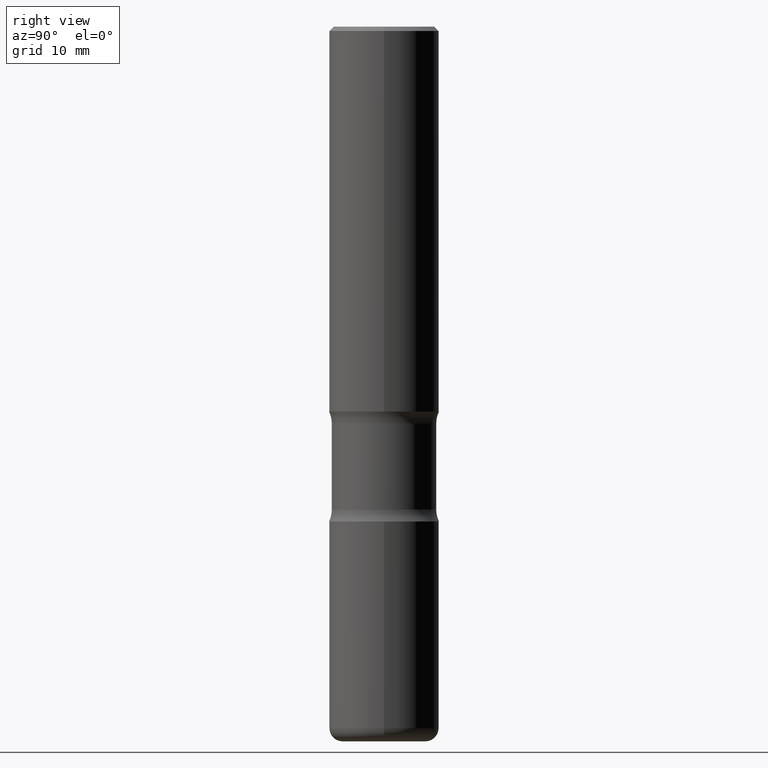
[diagram: clean part render]
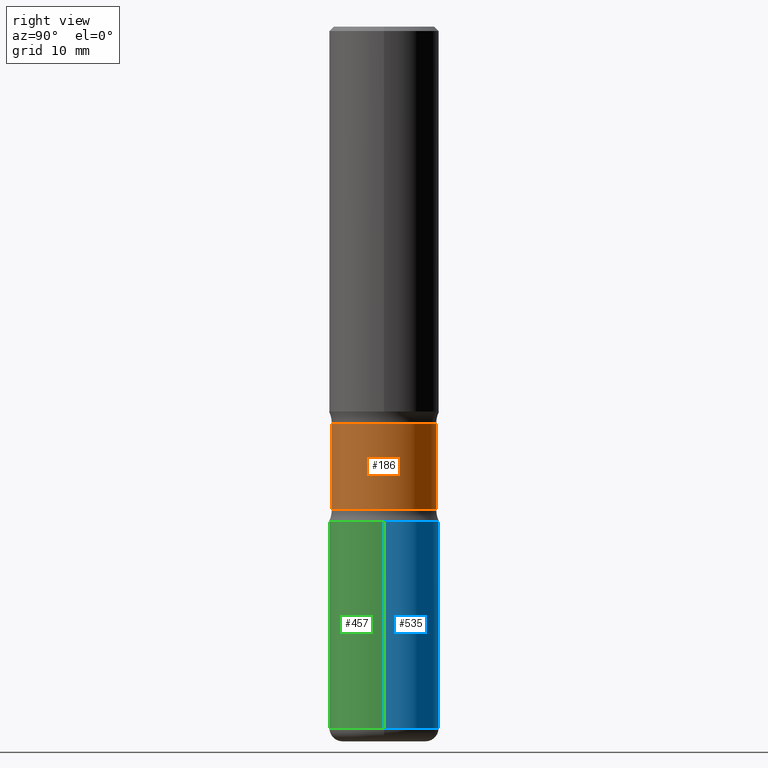
[diagram: same view with three faces highlighted in distinct colors, each labeled with its STEP entity id]
A machine part, right view with three faces highlighted in distinct colors.
Their STEP definitions:

[orange] entity #186 — the highlighted cylindrical surface (partial cylindrical patch) has radius 6.0325 mm, axis along (0, -0, -1).
#7 = EDGE_CURVE ( 'NONE', #17, #112, #257, .T. ) ;
#10 = DIRECTION ( 'NONE',  ( 2.269921404058617848E-29, -3.742875210225950140E-15, -1.000000000000000000 ) ) ;
#14 = ORIENTED_EDGE ( 'NONE', *, *, #7, .T. ) ;
#16 = CARTESIAN_POINT ( 'NONE',  ( 1.658453635950563680E-15, 0.2374999999999881095, -3.250000000000002220 ) ) ;
#17 = VERTEX_POINT ( 'NONE', #242 ) ;
#26 = DIRECTION ( 'NONE',  ( 6.982962677686266711E-15, 1.000000000000000000, -3.450755360418023049E-15 ) ) ;
#30 = EDGE_CURVE ( 'NONE', #112, #68, #37, .T. ) ;
#37 = LINE ( 'NONE', #86, #217 ) ;
#62 = DIRECTION ( 'NONE',  ( 2.269921404058617848E-29, -3.742875210225950140E-15, -1.000000000000000000 ) ) ;
#68 = VERTEX_POINT ( 'NONE', #554 ) ;
#78 = DIRECTION ( 'NONE',  ( 2.269921404058617848E-29, -3.742875210225950140E-15, -1.000000000000000000 ) ) ;
#86 = CARTESIAN_POINT ( 'NONE',  ( -1.629368274470659150E-15, -0.2375000000000113409, -3.250000000000000000 ) ) ;
#112 = VERTEX_POINT ( 'NONE', #397 ) ;
#171 = EDGE_CURVE ( 'NONE', #229, #68, #317, .T. ) ;
#186 = ADVANCED_FACE ( 'NONE', ( #357 ), #360, .T. ) ;
#217 = VECTOR ( 'NONE', #464, 39.37007874015748143 ) ;
#224 = VECTOR ( 'NONE', #10, 39.37007874015748143 ) ;
#229 = VERTEX_POINT ( 'NONE', #440 ) ;
#230 = DIRECTION ( 'NONE',  ( 6.982962677686265922E-15, 1.000000000000000000, -4.601007147224027577E-15 ) ) ;
#236 = DIRECTION ( 'NONE',  ( 6.982962677686265133E-15, 1.000000000000000000, -3.450755360418019105E-15 ) ) ;
#242 = CARTESIAN_POINT ( 'NONE',  ( 1.658453635950530153E-15, 0.2374999999999934108, -1.804486236794262233 ) ) ;
#249 = EDGE_CURVE ( 'NONE', #17, #229, #400, .T. ) ;
#257 = CIRCLE ( 'NONE', #471, 0.2374999999999995726 ) ;
#278 = EDGE_LOOP ( 'NONE', ( #14, #537, #430, #527 ) ) ;
#305 = AXIS2_PLACEMENT_3D ( 'NONE', #539, #62, #236 ) ;
#317 = CIRCLE ( 'NONE', #305, 0.2374999999999998224 ) ;
#323 = DIRECTION ( 'NONE',  ( 2.269921404058617848E-29, -3.742875210225950140E-15, -1.000000000000000000 ) ) ;
#329 = CARTESIAN_POINT ( 'NONE',  ( 4.491023587013149728E-29, -6.188330592279845103E-15, -1.804486236794261567 ) ) ;
#357 = FACE_OUTER_BOUND ( 'NONE', #278, .T. ) ;
#360 = CYLINDRICAL_SURFACE ( 'NONE', #386, 0.2374999999999997113 ) ;
#386 = AXIS2_PLACEMENT_3D ( 'NONE', #436, #323, #230 ) ;
#397 = CARTESIAN_POINT ( 'NONE',  ( -1.672246386956765893E-15, -0.2375000000000057621, -1.804486236794260678 ) ) ;
#400 = LINE ( 'NONE', #16, #224 ) ;
#430 = ORIENTED_EDGE ( 'NONE', *, *, #171, .F. ) ;
#436 = CARTESIAN_POINT ( 'NONE',  ( 7.772226217975179114E-29, -1.159870822262303332E-14, -3.250000000000001332 ) ) ;
#440 = CARTESIAN_POINT ( 'NONE',  ( 1.658453635950540606E-15, 0.2374999999999921618, -2.195513763205742208 ) ) ;
#464 = DIRECTION ( 'NONE',  ( 2.269921404058617848E-29, -3.742875210225950140E-15, -1.000000000000000000 ) ) ;
#471 = AXIS2_PLACEMENT_3D ( 'NONE', #329, #78, #26 ) ;
#527 = ORIENTED_EDGE ( 'NONE', *, *, #249, .F. ) ;
#537 = ORIENTED_EDGE ( 'NONE', *, *, #30, .T. ) ;
#539 = CARTESIAN_POINT ( 'NONE',  ( 5.378625338790664161E-29, -7.651897827401345401E-15, -2.195513763205741320 ) ) ;
#554 = CARTESIAN_POINT ( 'NONE',  ( -1.672246386956757412E-15, -0.2375000000000074829, -2.195513763205740432 ) ) ;

[blue] entity #535 — the highlighted cylindrical surface (partial cylindrical patch) has radius 6.35 mm, axis along (-0, 0, 1).
#23 = ORIENTED_EDGE ( 'NONE', *, *, #557, .F. ) ;
#25 = EDGE_CURVE ( 'NONE', #81, #56, #500, .T. ) ;
#32 = VECTOR ( 'NONE', #291, 39.37007874015748143 ) ;
#56 = VERTEX_POINT ( 'NONE', #496 ) ;
#81 = VERTEX_POINT ( 'NONE', #408 ) ;
#96 = CIRCLE ( 'NONE', #519, 0.2500000000000003886 ) ;
#103 = LINE ( 'NONE', #187, #212 ) ;
#115 = VERTEX_POINT ( 'NONE', #328 ) ;
#140 = AXIS2_PLACEMENT_3D ( 'NONE', #560, #371, #452 ) ;
#154 = EDGE_CURVE ( 'NONE', #221, #115, #103, .T. ) ;
#175 = CYLINDRICAL_SURFACE ( 'NONE', #226, 0.2500000000000003886 ) ;
#187 = CARTESIAN_POINT ( 'NONE',  ( 0.2500000000000003886, -1.745740669421569636E-15, 1.219044193948985910E-29 ) ) ;
#197 = CARTESIAN_POINT ( 'NONE',  ( 0.000000000000000000, 0.000000000000000000, 0.000000000000000000 ) ) ;
#212 = VECTOR ( 'NONE', #273, 39.37007874015748143 ) ;
#221 = VERTEX_POINT ( 'NONE', #366 ) ;
#226 = AXIS2_PLACEMENT_3D ( 'NONE', #197, #300, #468 ) ;
#234 = EDGE_LOOP ( 'NONE', ( #503, #264, #23, #401 ) ) ;
#264 = ORIENTED_EDGE ( 'NONE', *, *, #25, .T. ) ;
#273 = DIRECTION ( 'NONE',  ( -2.445468806185136877E-29, 3.491481338843145188E-15, 1.000000000000000000 ) ) ;
#291 = DIRECTION ( 'NONE',  ( -2.445468806185136877E-29, 3.491481338843145188E-15, 1.000000000000000000 ) ) ;
#295 = DIRECTION ( 'NONE',  ( -2.445468806185136597E-29, 3.491481338843145583E-15, 1.000000000000000000 ) ) ;
#300 = DIRECTION ( 'NONE',  ( -2.445468806185136597E-29, 3.491481338843145583E-15, 1.000000000000000000 ) ) ;
#328 = CARTESIAN_POINT ( 'NONE',  ( 0.2500000000000003886, -9.601573681818649859E-15, -2.250000000000001332 ) ) ;
#330 = EDGE_CURVE ( 'NONE', #221, #81, #382, .T. ) ;
#343 = CARTESIAN_POINT ( 'NONE',  ( 5.502304813916559585E-29, -7.855833012397081604E-15, -2.250000000000001332 ) ) ;
#366 = CARTESIAN_POINT ( 'NONE',  ( 0.2500000000000003886, -1.288356614033120279E-14, -3.189999999999999947 ) ) ;
#371 = DIRECTION ( 'NONE',  ( -2.445468806185136597E-29, 3.491481338843145583E-15, 1.000000000000000000 ) ) ;
#373 = FACE_OUTER_BOUND ( 'NONE', #234, .T. ) ;
#382 = CIRCLE ( 'NONE', #140, 0.2500000000000003886 ) ;
#384 = DIRECTION ( 'NONE',  ( 1.000000000000000000, -6.982962677686263555E-15, 0.000000000000000000 ) ) ;
#401 = ORIENTED_EDGE ( 'NONE', *, *, #154, .F. ) ;
#408 = CARTESIAN_POINT ( 'NONE',  ( -0.2500000000000003886, -9.361468631509380911E-15, -3.189999999999999947 ) ) ;
#452 = DIRECTION ( 'NONE',  ( 1.000000000000000000, -6.982962677686267499E-15, 0.000000000000000000 ) ) ;
#458 = CARTESIAN_POINT ( 'NONE',  ( -0.2500000000000003886, 1.776356839400253226E-15, -1.229733772563728407E-29 ) ) ;
#468 = DIRECTION ( 'NONE',  ( 1.000000000000000000, -6.982962677686267499E-15, 4.876176775795935793E-29 ) ) ;
#496 = CARTESIAN_POINT ( 'NONE',  ( -0.2500000000000003886, -7.720472402253104447E-15, -2.250000000000001332 ) ) ;
#500 = LINE ( 'NONE', #458, #32 ) ;
#503 = ORIENTED_EDGE ( 'NONE', *, *, #330, .T. ) ;
#519 = AXIS2_PLACEMENT_3D ( 'NONE', #343, #295, #384 ) ;
#535 = ADVANCED_FACE ( 'NONE', ( #373 ), #175, .T. ) ;
#557 = EDGE_CURVE ( 'NONE', #115, #56, #96, .T. ) ;
#560 = CARTESIAN_POINT ( 'NONE',  ( 7.801045491730585789E-29, -1.113782547090963453E-14, -3.189999999999999947 ) ) ;

[green] entity #457 — the highlighted cylindrical surface (partial cylindrical patch) has radius 6.35 mm, axis along (-0, 0, 1).
#25 = EDGE_CURVE ( 'NONE', #81, #56, #500, .T. ) ;
#32 = VECTOR ( 'NONE', #291, 39.37007874015748143 ) ;
#56 = VERTEX_POINT ( 'NONE', #496 ) ;
#81 = VERTEX_POINT ( 'NONE', #408 ) ;
#91 = CARTESIAN_POINT ( 'NONE',  ( 0.000000000000000000, 0.000000000000000000, 0.000000000000000000 ) ) ;
#98 = DIRECTION ( 'NONE',  ( 1.000000000000000000, -6.982962677686267499E-15, 4.876176775795935793E-29 ) ) ;
#103 = LINE ( 'NONE', #187, #212 ) ;
#105 = CIRCLE ( 'NONE', #462, 0.2500000000000003886 ) ;
#110 = EDGE_CURVE ( 'NONE', #56, #115, #359, .T. ) ;
#115 = VERTEX_POINT ( 'NONE', #328 ) ;
#121 = CARTESIAN_POINT ( 'NONE',  ( 7.801045491730585789E-29, -1.113782547090963453E-14, -3.189999999999999947 ) ) ;
#146 = ORIENTED_EDGE ( 'NONE', *, *, #154, .T. ) ;
#154 = EDGE_CURVE ( 'NONE', #221, #115, #103, .T. ) ;
#161 = AXIS2_PLACEMENT_3D ( 'NONE', #416, #378, #184 ) ;
#177 = ORIENTED_EDGE ( 'NONE', *, *, #428, .T. ) ;
#182 = ORIENTED_EDGE ( 'NONE', *, *, #25, .F. ) ;
#184 = DIRECTION ( 'NONE',  ( 1.000000000000000000, -6.982962677686263555E-15, 0.000000000000000000 ) ) ;
#187 = CARTESIAN_POINT ( 'NONE',  ( 0.2500000000000003886, -1.745740669421569636E-15, 1.219044193948985910E-29 ) ) ;
#212 = VECTOR ( 'NONE', #273, 39.37007874015748143 ) ;
#221 = VERTEX_POINT ( 'NONE', #366 ) ;
#252 = DIRECTION ( 'NONE',  ( -2.445468806185136597E-29, 3.491481338843145583E-15, 1.000000000000000000 ) ) ;
#273 = DIRECTION ( 'NONE',  ( -2.445468806185136877E-29, 3.491481338843145188E-15, 1.000000000000000000 ) ) ;
#291 = DIRECTION ( 'NONE',  ( -2.445468806185136877E-29, 3.491481338843145188E-15, 1.000000000000000000 ) ) ;
#325 = EDGE_LOOP ( 'NONE', ( #182, #177, #146, #441 ) ) ;
#328 = CARTESIAN_POINT ( 'NONE',  ( 0.2500000000000003886, -9.601573681818649859E-15, -2.250000000000001332 ) ) ;
#359 = CIRCLE ( 'NONE', #161, 0.2500000000000003886 ) ;
#366 = CARTESIAN_POINT ( 'NONE',  ( 0.2500000000000003886, -1.288356614033120279E-14, -3.189999999999999947 ) ) ;
#378 = DIRECTION ( 'NONE',  ( -2.445468806185136597E-29, 3.491481338843145583E-15, 1.000000000000000000 ) ) ;
#394 = AXIS2_PLACEMENT_3D ( 'NONE', #91, #426, #98 ) ;
#408 = CARTESIAN_POINT ( 'NONE',  ( -0.2500000000000003886, -9.361468631509380911E-15, -3.189999999999999947 ) ) ;
#416 = CARTESIAN_POINT ( 'NONE',  ( 5.502304813916559585E-29, -7.855833012397081604E-15, -2.250000000000001332 ) ) ;
#426 = DIRECTION ( 'NONE',  ( -2.445468806185136597E-29, 3.491481338843145583E-15, 1.000000000000000000 ) ) ;
#427 = FACE_OUTER_BOUND ( 'NONE', #325, .T. ) ;
#428 = EDGE_CURVE ( 'NONE', #81, #221, #105, .T. ) ;
#441 = ORIENTED_EDGE ( 'NONE', *, *, #110, .F. ) ;
#457 = ADVANCED_FACE ( 'NONE', ( #427 ), #516, .T. ) ;
#458 = CARTESIAN_POINT ( 'NONE',  ( -0.2500000000000003886, 1.776356839400253226E-15, -1.229733772563728407E-29 ) ) ;
#462 = AXIS2_PLACEMENT_3D ( 'NONE', #121, #252, #513 ) ;
#496 = CARTESIAN_POINT ( 'NONE',  ( -0.2500000000000003886, -7.720472402253104447E-15, -2.250000000000001332 ) ) ;
#500 = LINE ( 'NONE', #458, #32 ) ;
#513 = DIRECTION ( 'NONE',  ( 1.000000000000000000, -6.982962677686267499E-15, 0.000000000000000000 ) ) ;
#516 = CYLINDRICAL_SURFACE ( 'NONE', #394, 0.2500000000000003886 ) ;